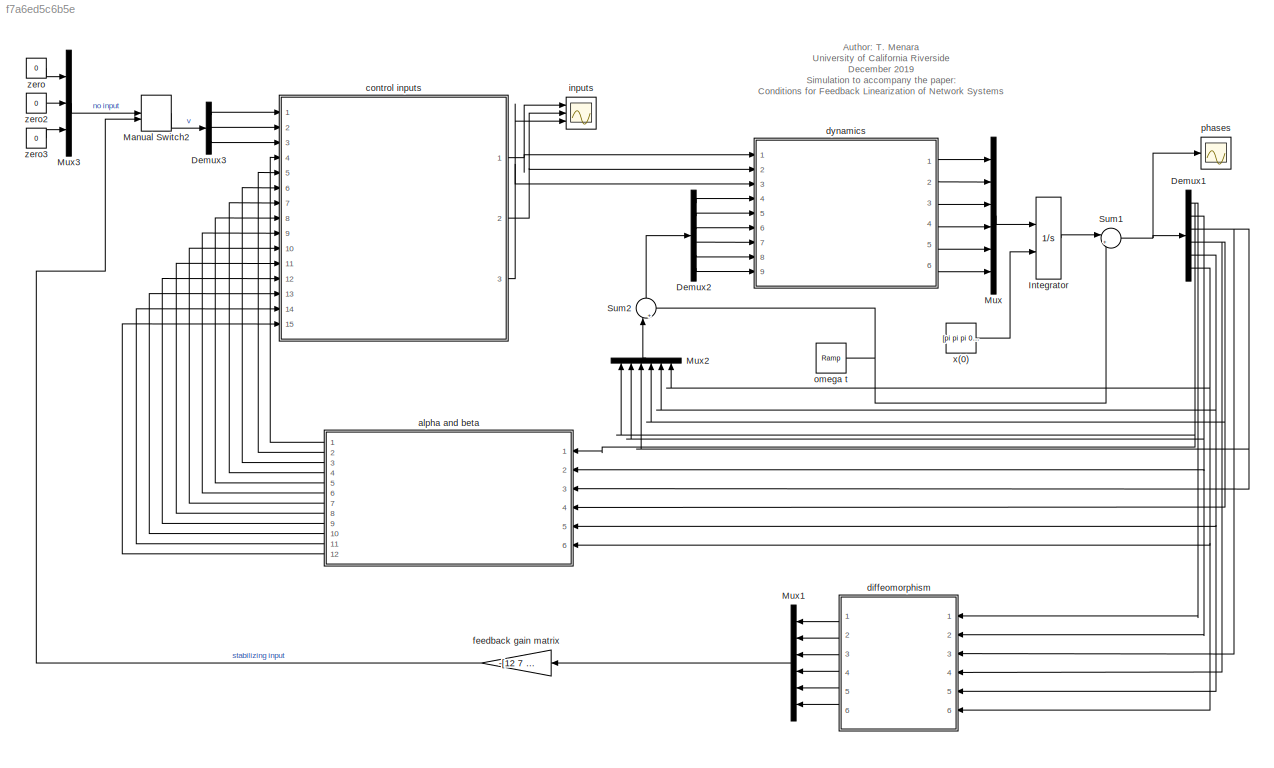
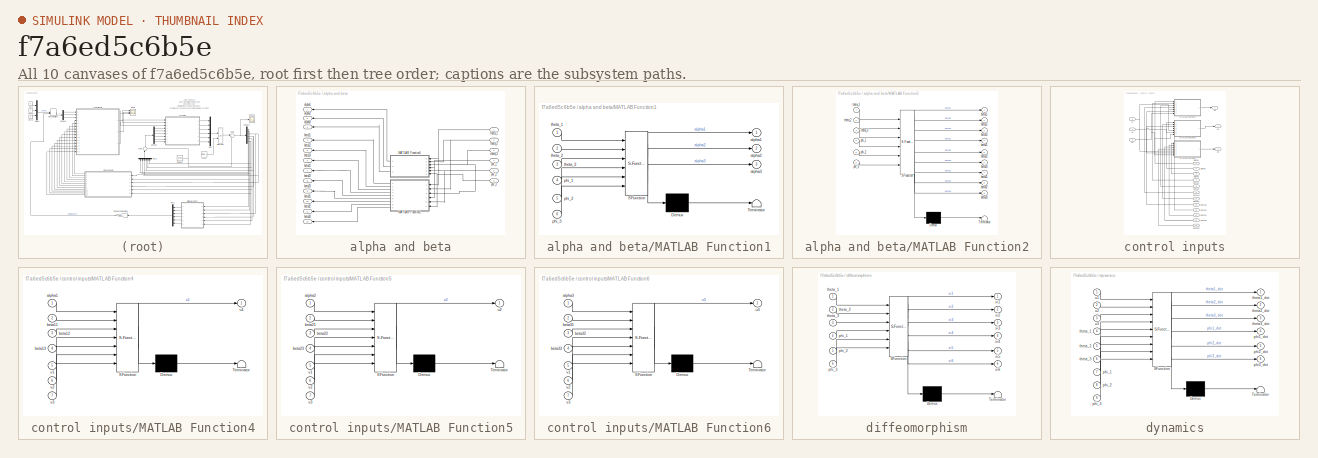
[diagram: thumbnail index - all 10 canvases of the model, root first then tree order]
MODEL slx_f7a6ed5c6b5e
KIND model
CONFIG AbsTol = auto
CONFIG EnableMultiTasking = off
CONFIG FixedStep = 0.001
CONFIG MaxStep = auto
CONFIG MinStep = auto
CONFIG RelTol = 1e-7
CONFIG SampleTimeConstraint = Unconstrained
CONFIG Solver = FixedStepAuto
CONFIG SolverName = FixedStepAuto
CONFIG StartTime = 0.0
CONFIG StopTime = 5
BLOCK [Demux] Demux1
  DisplayOption = bar
  Outputs = 6
  Ports = [1, 6]
BLOCK [Demux] Demux2
  DisplayOption = bar
  Outputs = 6
  Ports = [1, 6]
BLOCK [Demux] Demux3
  DisplayOption = bar
  Outputs = 3
  Ports = [1, 3]
BLOCK [Integrator] Integrator
  ContinuousStateAttributes = 'phases'
  InitialConditionSource = external
  Ports = [2, 1]
BLOCK [ManualSwitch] Manual Switch2
  CurrentSetting = 0
BLOCK [Mux] Mux
  DisplayOption = bar
  Inputs = 6
  Ports = [6, 1]
BLOCK [Mux] Mux1
  DisplayOption = bar
  Inputs = 6
  Ports = [6, 1]
BLOCK [Mux] Mux2
  DisplayOption = bar
  Inputs = 6
  Ports = [6, 1]
BLOCK [Mux] Mux3
  DisplayOption = bar
  Inputs = 3
  Ports = [3, 1]
BLOCK [Sum] Sum1
  IconShape = round
  InputSameDT = off
  Inputs = |+-
  OutDataTypeStr = Inherit: Inherit via internal rule
  Ports = [2, 1]
  SaturateOnIntegerOverflow = off
BLOCK [Sum] Sum2
  IconShape = round
  InputSameDT = off
  Inputs = |++
  OutDataTypeStr = Inherit: Inherit via internal rule
  Ports = [2, 1]
  SaturateOnIntegerOverflow = off
BLOCK [SubSystem] alpha and beta
  Ports = [6, 12]
  RequestExecContextInheritance = off
BLOCK [SubSystem] alpha and beta/MATLAB Function1
  ErrorFcn = Stateflow.Translate.translate
  PermitHierarchicalResolution = ExplicitOnly
  Ports = [6, 3]
  RequestExecContextInheritance = off
  SFBlockType = MATLAB Function
  TreatAsAtomicUnit = on
BLOCK [Demux] alpha and beta/MATLAB Function1/ Demux 
  Outputs = 1
  Ports = [1, 1]
BLOCK [S-Function] alpha and beta/MATLAB Function1/ SFunction 
  EnableBusSupport = on
  FunctionName = sf_sfun
  PortCounts = [6 4]
  Ports = [6, 4]
  SFcnIsStateOwnerBlock = off
  SFunctionDeploymentMode = off
  Tag = Stateflow S-Function Feedback_lin_3body_2body 1
BLOCK [Terminator] alpha and beta/MATLAB Function1/ Terminator 
BLOCK [Outport] alpha and beta/MATLAB Function1/alpha1
  IconDisplay = Port number
BLOCK [Outport] alpha and beta/MATLAB Function1/alpha2
  IconDisplay = Port number
  Port = 2
BLOCK [Outport] alpha and beta/MATLAB Function1/alpha3
  IconDisplay = Port number
  Port = 3
BLOCK [Inport] alpha and beta/MATLAB Function1/phi_1
  IconDisplay = Port number
  Port = 4
BLOCK [Inport] alpha and beta/MATLAB Function1/phi_2
  IconDisplay = Port number
  Port = 5
BLOCK [Inport] alpha and beta/MATLAB Function1/phi_3
  IconDisplay = Port number
  Port = 6
BLOCK [Inport] alpha and beta/MATLAB Function1/theta_1
  IconDisplay = Port number
BLOCK [Inport] alpha and beta/MATLAB Function1/theta_2
  IconDisplay = Port number
  Port = 2
BLOCK [Inport] alpha and beta/MATLAB Function1/theta_3
  IconDisplay = Port number
  Port = 3
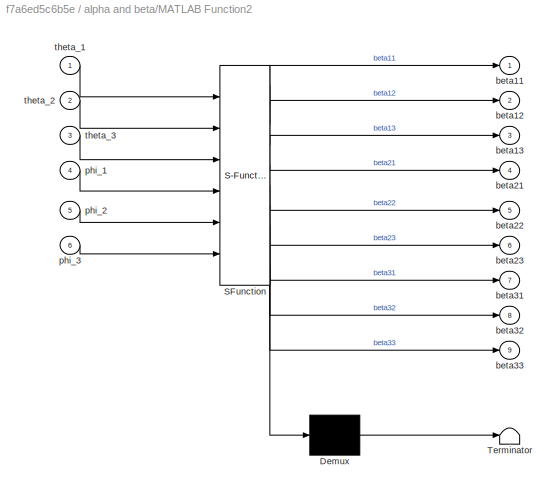
BLOCK [SubSystem] alpha and beta/MATLAB Function2
  ErrorFcn = Stateflow.Translate.translate
  PermitHierarchicalResolution = ExplicitOnly
  Ports = [6, 9]
  RequestExecContextInheritance = off
  SFBlockType = MATLAB Function
  TreatAsAtomicUnit = on
BLOCK [Demux] alpha and beta/MATLAB Function2/ Demux 
  Outputs = 1
  Ports = [1, 1]
BLOCK [S-Function] alpha and beta/MATLAB Function2/ SFunction 
  EnableBusSupport = on
  FunctionName = sf_sfun
  PortCounts = [6 10]
  Ports = [6, 10]
  SFcnIsStateOwnerBlock = off
  SFunctionDeploymentMode = off
  Tag = Stateflow S-Function Feedback_lin_3body_2body 3
BLOCK [Terminator] alpha and beta/MATLAB Function2/ Terminator 
BLOCK [Outport] alpha and beta/MATLAB Function2/beta11
  IconDisplay = Port number
BLOCK [Outport] alpha and beta/MATLAB Function2/beta12
  IconDisplay = Port number
  Port = 2
BLOCK [Outport] alpha and beta/MATLAB Function2/beta13
  IconDisplay = Port number
  Port = 3
BLOCK [Outport] alpha and beta/MATLAB Function2/beta21
  IconDisplay = Port number
  Port = 4
BLOCK [Outport] alpha and beta/MATLAB Function2/beta22
  IconDisplay = Port number
  Port = 5
BLOCK [Outport] alpha and beta/MATLAB Function2/beta23
  IconDisplay = Port number
  Port = 6
BLOCK [Outport] alpha and beta/MATLAB Function2/beta31
  IconDisplay = Port number
  Port = 7
BLOCK [Outport] alpha and beta/MATLAB Function2/beta32
  IconDisplay = Port number
  Port = 8
BLOCK [Outport] alpha and beta/MATLAB Function2/beta33
  IconDisplay = Port number
  Port = 9
BLOCK [Inport] alpha and beta/MATLAB Function2/phi_1
  IconDisplay = Port number
  Port = 4
BLOCK [Inport] alpha and beta/MATLAB Function2/phi_2
  IconDisplay = Port number
  Port = 5
BLOCK [Inport] alpha and beta/MATLAB Function2/phi_3
  IconDisplay = Port number
  Port = 6
BLOCK [Inport] alpha and beta/MATLAB Function2/theta_1
  IconDisplay = Port number
BLOCK [Inport] alpha and beta/MATLAB Function2/theta_2
  IconDisplay = Port number
  Port = 2
BLOCK [Inport] alpha and beta/MATLAB Function2/theta_3
  IconDisplay = Port number
  Port = 3
BLOCK [Outport] alpha and beta/alpha1
  IconDisplay = Port number
BLOCK [Outport] alpha and beta/alpha2
  IconDisplay = Port number
  Port = 2
BLOCK [Outport] alpha and beta/alpha3
  IconDisplay = Port number
  Port = 3
BLOCK [Outport] alpha and beta/beta11
  IconDisplay = Port number
  Port = 4
BLOCK [Outport] alpha and beta/beta12
  IconDisplay = Port number
  Port = 5
BLOCK [Outport] alpha and beta/beta13
  IconDisplay = Port number
  Port = 6
BLOCK [Outport] alpha and beta/beta21
  IconDisplay = Port number
  Port = 7
BLOCK [Outport] alpha and beta/beta22
  IconDisplay = Port number
  Port = 8
BLOCK [Outport] alpha and beta/beta23
  IconDisplay = Port number
  Port = 9
BLOCK [Outport] alpha and beta/beta31
  IconDisplay = Port number
  Port = 10
BLOCK [Outport] alpha and beta/beta32
  IconDisplay = Port number
  Port = 11
BLOCK [Outport] alpha and beta/beta33
  IconDisplay = Port number
  Port = 12
BLOCK [Inport] alpha and beta/phi_1
  IconDisplay = Port number
  Port = 4
BLOCK [Inport] alpha and beta/phi_2
  IconDisplay = Port number
  Port = 5
BLOCK [Inport] alpha and beta/phi_3
  IconDisplay = Port number
  Port = 6
BLOCK [Inport] alpha and beta/theta_1
  IconDisplay = Port number
BLOCK [Inport] alpha and beta/theta_2
  IconDisplay = Port number
  Port = 2
BLOCK [Inport] alpha and beta/theta_3
  IconDisplay = Port number
  Port = 3
BLOCK [SubSystem] control inputs
  Ports = [15, 3]
  RequestExecContextInheritance = off
BLOCK [SubSystem] control inputs/MATLAB Function4
  ErrorFcn = Stateflow.Translate.translate
  PermitHierarchicalResolution = ExplicitOnly
  Ports = [7, 1]
  RequestExecContextInheritance = off
  SFBlockType = MATLAB Function
  TreatAsAtomicUnit = on
BLOCK [Demux] control inputs/MATLAB Function4/ Demux 
  Outputs = 1
  Ports = [1, 1]
BLOCK [S-Function] control inputs/MATLAB Function4/ SFunction 
  EnableBusSupport = on
  FunctionName = sf_sfun
  PortCounts = [7 2]
  Ports = [7, 2]
  SFcnIsStateOwnerBlock = off
  SFunctionDeploymentMode = off
  Tag = Stateflow S-Function Feedback_lin_3body_2body 5
BLOCK [Terminator] control inputs/MATLAB Function4/ Terminator 
BLOCK [Inport] control inputs/MATLAB Function4/alpha1
  IconDisplay = Port number
BLOCK [Inport] control inputs/MATLAB Function4/beta11
  IconDisplay = Port number
  Port = 2
BLOCK [Inport] control inputs/MATLAB Function4/beta12
  IconDisplay = Port number
  Port = 3
BLOCK [Inport] control inputs/MATLAB Function4/beta13
  IconDisplay = Port number
  Port = 4
BLOCK [Outport] control inputs/MATLAB Function4/u1
  IconDisplay = Port number
BLOCK [Inport] control inputs/MATLAB Function4/v1
  IconDisplay = Port number
  Port = 5
BLOCK [Inport] control inputs/MATLAB Function4/v2
  IconDisplay = Port number
  Port = 6
BLOCK [Inport] control inputs/MATLAB Function4/v3
  IconDisplay = Port number
  Port = 7
BLOCK [SubSystem] control inputs/MATLAB Function5
  ErrorFcn = Stateflow.Translate.translate
  PermitHierarchicalResolution = ExplicitOnly
  Ports = [7, 1]
  RequestExecContextInheritance = off
  SFBlockType = MATLAB Function
  TreatAsAtomicUnit = on
BLOCK [Demux] control inputs/MATLAB Function5/ Demux 
  Outputs = 1
  Ports = [1, 1]
BLOCK [S-Function] control inputs/MATLAB Function5/ SFunction 
  EnableBusSupport = on
  FunctionName = sf_sfun
  PortCounts = [7 2]
  Ports = [7, 2]
  SFcnIsStateOwnerBlock = off
  SFunctionDeploymentMode = off
  Tag = Stateflow S-Function Feedback_lin_3body_2body 6
BLOCK [Terminator] control inputs/MATLAB Function5/ Terminator 
BLOCK [Inport] control inputs/MATLAB Function5/alpha2
  IconDisplay = Port number
BLOCK [Inport] control inputs/MATLAB Function5/beta21
  IconDisplay = Port number
  Port = 2
BLOCK [Inport] control inputs/MATLAB Function5/beta22
  IconDisplay = Port number
  Port = 3
BLOCK [Inport] control inputs/MATLAB Function5/beta23
  IconDisplay = Port number
  Port = 4
BLOCK [Outport] control inputs/MATLAB Function5/u2
  IconDisplay = Port number
BLOCK [Inport] control inputs/MATLAB Function5/v1
  IconDisplay = Port number
  Port = 5
BLOCK [Inport] control inputs/MATLAB Function5/v2
  IconDisplay = Port number
  Port = 6
BLOCK [Inport] control inputs/MATLAB Function5/v3
  IconDisplay = Port number
  Port = 7
BLOCK [SubSystem] control inputs/MATLAB Function6
  ErrorFcn = Stateflow.Translate.translate
  PermitHierarchicalResolution = ExplicitOnly
  Ports = [7, 1]
  RequestExecContextInheritance = off
  SFBlockType = MATLAB Function
  TreatAsAtomicUnit = on
BLOCK [Demux] control inputs/MATLAB Function6/ Demux 
  Outputs = 1
  Ports = [1, 1]
BLOCK [S-Function] control inputs/MATLAB Function6/ SFunction 
  EnableBusSupport = on
  FunctionName = sf_sfun
  PortCounts = [7 2]
  Ports = [7, 2]
  SFcnIsStateOwnerBlock = off
  SFunctionDeploymentMode = off
  Tag = Stateflow S-Function Feedback_lin_3body_2body 7
BLOCK [Terminator] control inputs/MATLAB Function6/ Terminator 
BLOCK [Inport] control inputs/MATLAB Function6/alpha3
  IconDisplay = Port number
BLOCK [Inport] control inputs/MATLAB Function6/beta31
  IconDisplay = Port number
  Port = 2
BLOCK [Inport] control inputs/MATLAB Function6/beta32
  IconDisplay = Port number
  Port = 3
BLOCK [Inport] control inputs/MATLAB Function6/beta33
  IconDisplay = Port number
  Port = 4
BLOCK [Outport] control inputs/MATLAB Function6/u3
  IconDisplay = Port number
BLOCK [Inport] control inputs/MATLAB Function6/v1
  IconDisplay = Port number
  Port = 5
BLOCK [Inport] control inputs/MATLAB Function6/v2
  IconDisplay = Port number
  Port = 6
BLOCK [Inport] control inputs/MATLAB Function6/v3
  IconDisplay = Port number
  Port = 7
BLOCK [Inport] control inputs/alpha1
  IconDisplay = Port number
  Port = 4
BLOCK [Inport] control inputs/alpha2
  IconDisplay = Port number
  Port = 5
BLOCK [Inport] control inputs/alpha3
  IconDisplay = Port number
  Port = 6
BLOCK [Inport] control inputs/beta11
  IconDisplay = Port number
  Port = 7
BLOCK [Inport] control inputs/beta12
  IconDisplay = Port number
  Port = 8
BLOCK [Inport] control inputs/beta13
  IconDisplay = Port number
  Port = 9
BLOCK [Inport] control inputs/beta21
  IconDisplay = Port number
  Port = 10
BLOCK [Inport] control inputs/beta22
  IconDisplay = Port number
  Port = 11
BLOCK [Inport] control inputs/beta23
  IconDisplay = Port number
  Port = 12
BLOCK [Inport] control inputs/beta31
  IconDisplay = Port number
  Port = 13
BLOCK [Inport] control inputs/beta32
  IconDisplay = Port number
  Port = 14
BLOCK [Inport] control inputs/beta33
  IconDisplay = Port number
  Port = 15
BLOCK [Outport] control inputs/u1
  IconDisplay = Port number
BLOCK [Outport] control inputs/u2
  IconDisplay = Port number
  Port = 2
BLOCK [Outport] control inputs/u3
  IconDisplay = Port number
  Port = 3
BLOCK [Inport] control inputs/v1
  IconDisplay = Port number
BLOCK [Inport] control inputs/v2
  IconDisplay = Port number
  Port = 2
BLOCK [Inport] control inputs/v3
  IconDisplay = Port number
  Port = 3
BLOCK [SubSystem] diffeomorphism
  ErrorFcn = Stateflow.Translate.translate
  PermitHierarchicalResolution = ExplicitOnly
  Ports = [6, 6]
  RequestExecContextInheritance = off
  SFBlockType = MATLAB Function
  TreatAsAtomicUnit = on
BLOCK [Demux] diffeomorphism/ Demux 
  Outputs = 1
  Ports = [1, 1]
BLOCK [S-Function] diffeomorphism/ SFunction 
  EnableBusSupport = on
  FunctionName = sf_sfun
  PortCounts = [6 7]
  Ports = [6, 7]
  SFcnIsStateOwnerBlock = off
  SFunctionDeploymentMode = off
  Tag = Stateflow S-Function Feedback_lin_3body_2body 4
BLOCK [Terminator] diffeomorphism/ Terminator 
BLOCK [Inport] diffeomorphism/phi_1
  IconDisplay = Port number
  Port = 4
BLOCK [Inport] diffeomorphism/phi_2
  IconDisplay = Port number
  Port = 5
BLOCK [Inport] diffeomorphism/phi_3
  IconDisplay = Port number
  Port = 6
BLOCK [Inport] diffeomorphism/theta_1
  IconDisplay = Port number
BLOCK [Inport] diffeomorphism/theta_2
  IconDisplay = Port number
  Port = 2
BLOCK [Inport] diffeomorphism/theta_3
  IconDisplay = Port number
  Port = 3
BLOCK [Outport] diffeomorphism/xi1
  IconDisplay = Port number
BLOCK [Outport] diffeomorphism/xi2
  IconDisplay = Port number
  Port = 2
BLOCK [Outport] diffeomorphism/xi3
  IconDisplay = Port number
  Port = 3
BLOCK [Outport] diffeomorphism/xi4
  IconDisplay = Port number
  Port = 4
BLOCK [Outport] diffeomorphism/xi5
  IconDisplay = Port number
  Port = 5
BLOCK [Outport] diffeomorphism/xi6
  IconDisplay = Port number
  Port = 6
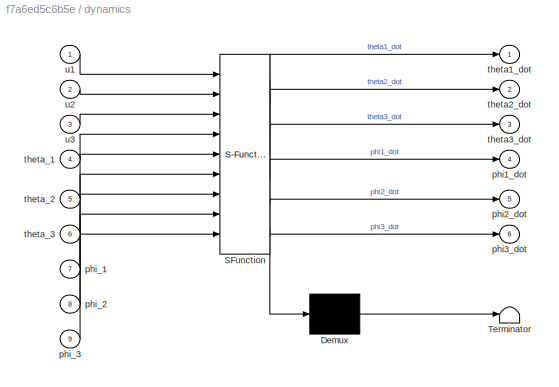
BLOCK [SubSystem] dynamics
  ErrorFcn = Stateflow.Translate.translate
  PermitHierarchicalResolution = ExplicitOnly
  Ports = [9, 6]
  RequestExecContextInheritance = off
  SFBlockType = MATLAB Function
  TreatAsAtomicUnit = on
BLOCK [Demux] dynamics/ Demux 
  Outputs = 1
  Ports = [1, 1]
BLOCK [S-Function] dynamics/ SFunction 
  EnableBusSupport = on
  FunctionName = sf_sfun
  PortCounts = [9 7]
  Ports = [9, 7]
  SFcnIsStateOwnerBlock = off
  SFunctionDeploymentMode = off
  Tag = Stateflow S-Function Feedback_lin_3body_2body 2
BLOCK [Terminator] dynamics/ Terminator 
BLOCK [Outport] dynamics/phi1_dot
  IconDisplay = Port number
  Port = 4
BLOCK [Outport] dynamics/phi2_dot
  IconDisplay = Port number
  Port = 5
BLOCK [Outport] dynamics/phi3_dot
  IconDisplay = Port number
  Port = 6
BLOCK [Inport] dynamics/phi_1
  IconDisplay = Port number
  Port = 7
BLOCK [Inport] dynamics/phi_2
  IconDisplay = Port number
  Port = 8
BLOCK [Inport] dynamics/phi_3
  IconDisplay = Port number
  Port = 9
BLOCK [Outport] dynamics/theta1_dot
  IconDisplay = Port number
BLOCK [Outport] dynamics/theta2_dot
  IconDisplay = Port number
  Port = 2
BLOCK [Outport] dynamics/theta3_dot
  IconDisplay = Port number
  Port = 3
BLOCK [Inport] dynamics/theta_1
  IconDisplay = Port number
  Port = 4
BLOCK [Inport] dynamics/theta_2
  IconDisplay = Port number
  Port = 5
BLOCK [Inport] dynamics/theta_3
  IconDisplay = Port number
  Port = 6
BLOCK [Inport] dynamics/u1
  IconDisplay = Port number
BLOCK [Inport] dynamics/u2
  IconDisplay = Port number
  Port = 2
BLOCK [Inport] dynamics/u3
  IconDisplay = Port number
  Port = 3
BLOCK [Gain] feedback gain matrix
  Gain = -[12 7 0 0 0 0; 0 0 30 11 0 0; 0 0 0 0 2 3]
  Multiplication = Matrix(K*u) (u vector)
  OutDataTypeStr = Inherit: Inherit via internal rule
  ParamDataTypeStr = Inherit: Inherit via internal rule
  SaturateOnIntegerOverflow = off
BLOCK [Scope] inputs
  Floating = off
  NumInputPorts = 3
  Ports = [3]
  ScopeSpecificationString = Simulink.scopes.TimeScopeBlockCfg('CurrentConfiguration', extmgr.ConfigurationSet(extmgr.Configuration('Core','General UI',true),extmgr.Configuration('Core','Source UI',true),extmgr.Configuration('Sources','WiredSimulink',true,'DataLoggingVariableName','ScopeData1'),extmgr.Configuration('Visuals','Time Domain',true,'SerializedDisplays',{struct('MinYLimReal','-4.76838','MaxYLimReal','14.71237','YLa...<+1492ch>
BLOCK [Reference] omega t  REF=simulink/Sources/Ramp
  Ports = [0, 1]
  SourceBlock = simulink/Sources/Ramp
  SourceProductBaseCode = SL
  SourceProductName = Simulink
  SourceType = Ramp
BLOCK [Scope] phases
  Floating = off
  NumInputPorts = 1
  Ports = [1]
  ScopeSpecificationString = Simulink.scopes.TimeScopeBlockCfg('CurrentConfiguration', extmgr.ConfigurationSet(extmgr.Configuration('Core','General UI',true),extmgr.Configuration('Core','Source UI',true),extmgr.Configuration('Sources','WiredSimulink',true),extmgr.Configuration('Visuals','Time Domain',true,'SerializedDisplays',{struct('MinYLimReal','-0.40725','MaxYLimReal','3.88026','YLabelReal','','MinYLimMag','0.00000','MaxY...<+1445ch>
BLOCK [Constant] x(0)
  Value = [pi pi pi 0 0 0]'+0.1*rand(6,1)-0.1*[rand rand rand 0 0 0]'
BLOCK [Constant] zero
  Value = 0
BLOCK [Constant] zero2
  Value = 0
BLOCK [Constant] zero3
  Value = 0
ANNOTATION (root): Author: T. Menara University of California Riverside December 2019 Simulation to accompany the paper: Conditions for Feedback Linearization of Network Systems
NET Demux1:1 -> Mux2:1, alpha and beta:1, diffeomorphism:1
NET Demux1:2 -> Mux2:2, alpha and beta:2, diffeomorphism:2
NET Demux1:3 -> Mux2:3, alpha and beta:3, diffeomorphism:3
NET Demux1:4 -> Mux2:4, alpha and beta:4, diffeomorphism:4
NET Demux1:5 -> Mux2:5, alpha and beta:5, diffeomorphism:5
NET Demux1:6 -> Mux2:6, alpha and beta:6, diffeomorphism:6
LINE Demux2:1 -> dynamics:4
LINE Demux2:2 -> dynamics:5
LINE Demux2:3 -> dynamics:6
LINE Demux2:4 -> dynamics:7
LINE Demux2:5 -> dynamics:8
LINE Demux2:6 -> dynamics:9
LINE Demux3:1 -> control inputs:1
LINE Demux3:2 -> control inputs:2
LINE Demux3:3 -> control inputs:3
LINE Integrator:1 -> Sum1:1
LINE Manual Switch2:1 -> Demux3:1
LINE Mux1:1 -> feedback gain matrix:1
LINE Mux2:1 -> Sum2:1
LINE Mux3:1 -> Manual Switch2:1
LINE Mux:1 -> Integrator:1
NET Sum1:1 -> Demux1:1, phases:1
LINE Sum2:1 -> Demux2:1
LINE alpha and beta/MATLAB Function1:1 -> alpha and beta/alpha1:1
LINE alpha and beta/MATLAB Function1:2 -> alpha and beta/alpha2:1
LINE alpha and beta/MATLAB Function1:3 -> alpha and beta/alpha3:1
LINE alpha and beta/MATLAB Function2:1 -> alpha and beta/beta11:1
LINE alpha and beta/MATLAB Function2:2 -> alpha and beta/beta12:1
LINE alpha and beta/MATLAB Function2:3 -> alpha and beta/beta13:1
LINE alpha and beta/MATLAB Function2:4 -> alpha and beta/beta21:1
LINE alpha and beta/MATLAB Function2:5 -> alpha and beta/beta22:1
LINE alpha and beta/MATLAB Function2:6 -> alpha and beta/beta23:1
LINE alpha and beta/MATLAB Function2:7 -> alpha and beta/beta31:1
LINE alpha and beta/MATLAB Function2:8 -> alpha and beta/beta32:1
LINE alpha and beta/MATLAB Function2:9 -> alpha and beta/beta33:1
NET alpha and beta/phi_1:1 -> alpha and beta/MATLAB Function1:4, alpha and beta/MATLAB Function2:4
NET alpha and beta/phi_2:1 -> alpha and beta/MATLAB Function1:5, alpha and beta/MATLAB Function2:5
NET alpha and beta/phi_3:1 -> alpha and beta/MATLAB Function1:6, alpha and beta/MATLAB Function2:6
NET alpha and beta/theta_1:1 -> alpha and beta/MATLAB Function1:1, alpha and beta/MATLAB Function2:1
NET alpha and beta/theta_2:1 -> alpha and beta/MATLAB Function1:2, alpha and beta/MATLAB Function2:2
NET alpha and beta/theta_3:1 -> alpha and beta/MATLAB Function1:3, alpha and beta/MATLAB Function2:3
LINE alpha and beta:1 -> control inputs:4
LINE alpha and beta:10 -> control inputs:13
LINE alpha and beta:11 -> control inputs:14
LINE alpha and beta:12 -> control inputs:15
LINE alpha and beta:2 -> control inputs:5
LINE alpha and beta:3 -> control inputs:6
LINE alpha and beta:4 -> control inputs:7
LINE alpha and beta:5 -> control inputs:8
LINE alpha and beta:6 -> control inputs:9
LINE alpha and beta:7 -> control inputs:10
LINE alpha and beta:8 -> control inputs:11
LINE alpha and beta:9 -> control inputs:12
LINE control inputs/MATLAB Function4:1 -> control inputs/u1:1
LINE control inputs/MATLAB Function5:1 -> control inputs/u2:1
LINE control inputs/MATLAB Function6:1 -> control inputs/u3:1
LINE control inputs/alpha1:1 -> control inputs/MATLAB Function4:1
LINE control inputs/alpha2:1 -> control inputs/MATLAB Function5:1
LINE control inputs/alpha3:1 -> control inputs/MATLAB Function6:1
LINE control inputs/beta11:1 -> control inputs/MATLAB Function4:2
LINE control inputs/beta12:1 -> control inputs/MATLAB Function4:3
LINE control inputs/beta13:1 -> control inputs/MATLAB Function4:4
LINE control inputs/beta21:1 -> control inputs/MATLAB Function5:2
LINE control inputs/beta22:1 -> control inputs/MATLAB Function5:3
LINE control inputs/beta23:1 -> control inputs/MATLAB Function5:4
LINE control inputs/beta31:1 -> control inputs/MATLAB Function6:2
LINE control inputs/beta32:1 -> control inputs/MATLAB Function6:3
LINE control inputs/beta33:1 -> control inputs/MATLAB Function6:4
NET control inputs/v1:1 -> control inputs/MATLAB Function4:5, control inputs/MATLAB Function5:5, control inputs/MATLAB Function6:5
NET control inputs/v2:1 -> control inputs/MATLAB Function4:6, control inputs/MATLAB Function5:6, control inputs/MATLAB Function6:6
NET control inputs/v3:1 -> control inputs/MATLAB Function4:7, control inputs/MATLAB Function5:7, control inputs/MATLAB Function6:7
NET control inputs:1 -> dynamics:1, inputs:1
NET control inputs:2 -> dynamics:2, inputs:2
NET control inputs:3 -> dynamics:3, inputs:3
LINE diffeomorphism:1 -> Mux1:1
LINE diffeomorphism:2 -> Mux1:2
LINE diffeomorphism:3 -> Mux1:3
LINE diffeomorphism:4 -> Mux1:4
LINE diffeomorphism:5 -> Mux1:5
LINE diffeomorphism:6 -> Mux1:6
LINE dynamics:1 -> Mux:1
LINE dynamics:2 -> Mux:2
LINE dynamics:3 -> Mux:3
LINE dynamics:4 -> Mux:4
LINE dynamics:5 -> Mux:5
LINE dynamics:6 -> Mux:6
LINE feedback gain matrix:1 -> Manual Switch2:2
NET omega t:1 -> Sum1:2, Sum2:2
LINE x(0):1 -> Integrator:2
LINE zero2:1 -> Mux3:2
LINE zero3:1 -> Mux3:3
LINE zero:1 -> Mux3:1
note: NET lines group one-source signal fan-out (src -> all destinations, sorted); 1:1 wires keep LINE
CHART alpha and beta/MATLAB Function1 states=1 transitions=1
  STATE_LABEL 'eML_blk_kernel()'
  STATE_LABEL 'SCRIPT:\nfunction [alpha1, alpha2, alpha3] = alpha_x(theta_1, theta_2, theta_3, phi_1, phi_2, phi_3)\n\nd = 1;\nk1 = 1;\nk2 = 1;\nN = 3;\nomega = 0;\n\nf =[omega + k1/N^2 * sin(theta_3 + theta_2 -2*theta_1); ...\n omega + k1/N^2 * sin(theta_3 + theta_1 -2*theta_2);...\n omega + k1/N^2 * sin(theta_1 + theta_2 -2*theta_3);...\n omega + k2/N * (sin(phi_2-phi_1) + sin(phi_3-phi_1)) + d*sin(theta_1-phi_1);...\n ome...<+3608ch>'
CHART dynamics states=1 transitions=1
  STATE_LABEL 'eML_blk_kernel()'
  STATE_LABEL 'SCRIPT:\nfunction [theta1_dot, theta2_dot, theta3_dot, phi1_dot, phi2_dot, phi3_dot] = dynamics(u1, u2, u3, theta_1, theta_2, theta_3, phi_1, phi_2, phi_3)\n\nd = 1;\nk1 = 1;\nk2 = 1;\nN = 3;\nomega = 1;\n\ntheta1_dot = omega + k1/N^2 * sin(theta_3 + theta_2 -2*theta_1) + u1;\ntheta2_dot = omega + k1/N^2 * sin(theta_3 + theta_1 -2*theta_2) + u2;\ntheta3_dot = omega + k1/N^2 * sin(theta_1 + theta_2 -2*theta_3...<+272ch>'
CHART alpha and beta/MATLAB Function2 states=1 transitions=1
  STATE_LABEL 'eML_blk_kernel()'
  STATE_LABEL 'SCRIPT:\nfunction [beta11, beta12, beta13, beta21, beta22, beta23, beta31, beta32, beta33] = beta_x(theta_1, theta_2, theta_3, phi_1, phi_2, phi_3)\n\nd = 1;\nk1 = 1;\nk2 = 1;\nN = 3;\nomega = 0;\n\n% J = [ -(2*k1*cos(theta_2 - 2*theta_1 + theta_3))/N^2,    (k1*cos(theta_2 - 2*theta_1 + theta_3))/N^2,    (k1*cos(theta_2 - 2*theta_1 + theta_3))/N^2,                                                           ...<+2616ch>'
CHART diffeomorphism states=1 transitions=1
  STATE_LABEL 'eML_blk_kernel()'
  STATE_LABEL 'SCRIPT:\nfunction [xi1, xi2, xi3, xi4, xi5, xi6] = phi(theta_1, theta_2, theta_3, phi_1, phi_2, phi_3)\n\nd = 1;\nk1 = 1;\nk2 = 1;\nN = 3;\nomega = 0; % zero because of rotating frame\n\nf =[omega + k1/N^2 * sin(theta_3 + theta_2 -2*theta_1); ...\n omega + k1/N^2 * sin(theta_3 + theta_1 -2*theta_2);...\n omega + k1/N^2 * sin(theta_1 + theta_2 -2*theta_3);...\n omega + k2/N * (sin(phi_2-phi_1) + sin(phi_3-phi_...<+2551ch>'
CHART control inputs/MATLAB Function4 states=1 transitions=1
  STATE_LABEL 'eML_blk_kernel()'
  STATE_LABEL 'SCRIPT:\nfunction u1  = control1(alpha1, beta11, beta12, beta13, v1, v2, v3)\n\nu1 = alpha1 + beta11*v1;'
CHART control inputs/MATLAB Function5 states=1 transitions=1
  STATE_LABEL 'eML_blk_kernel()'
  STATE_LABEL 'SCRIPT:\nfunction u2  = control2(alpha2, beta21, beta22, beta23, v1, v2, v3)\n\nu2 = alpha2 + beta22*v2;'
CHART control inputs/MATLAB Function6 states=1 transitions=1
  STATE_LABEL 'eML_blk_kernel()'
  STATE_LABEL 'SCRIPT:\nfunction u3  = control3(alpha3, beta31, beta32, beta33, v1, v2, v3)\n\nu3 = alpha3 + beta33*v3;'
